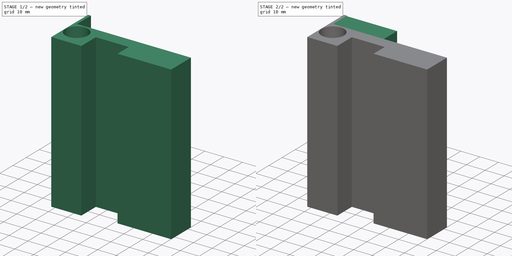
[diagram: build sequence overview — one tinted view per stage of 2, left to right]
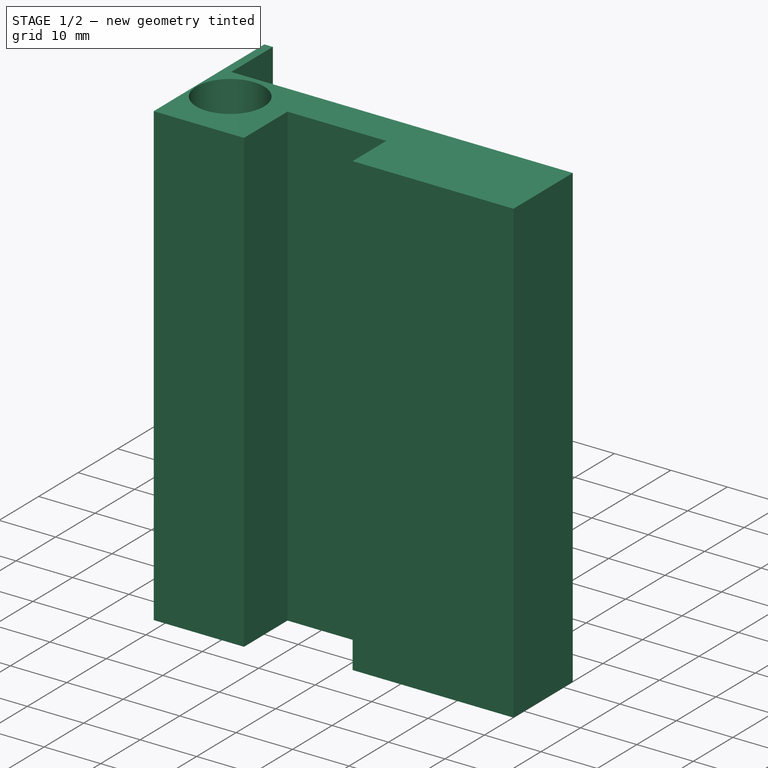
[diagram: stage 1 of 2 — iso view after this stage's code; geometry added in this stage tinted green]
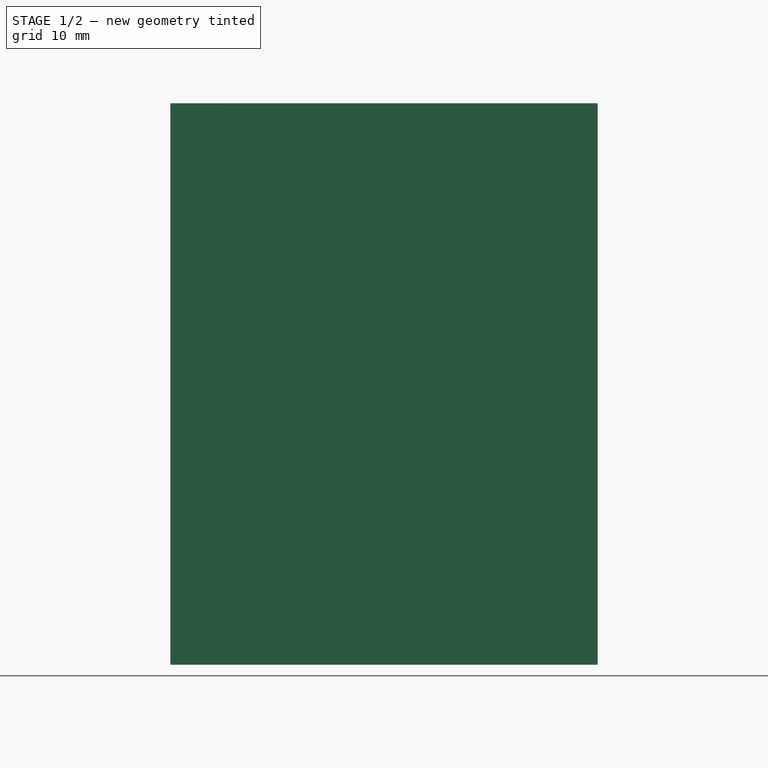
[diagram: stage 1 of 2 — front view after this stage's code; geometry added in this stage tinted green]
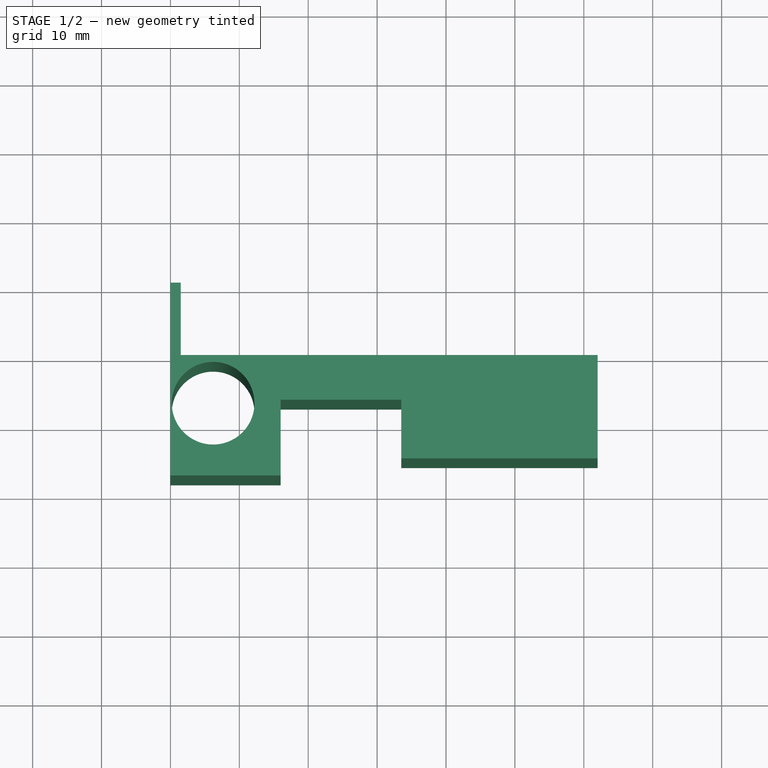
[diagram: stage 1 of 2 — top view after this stage's code; geometry added in this stage tinted green]
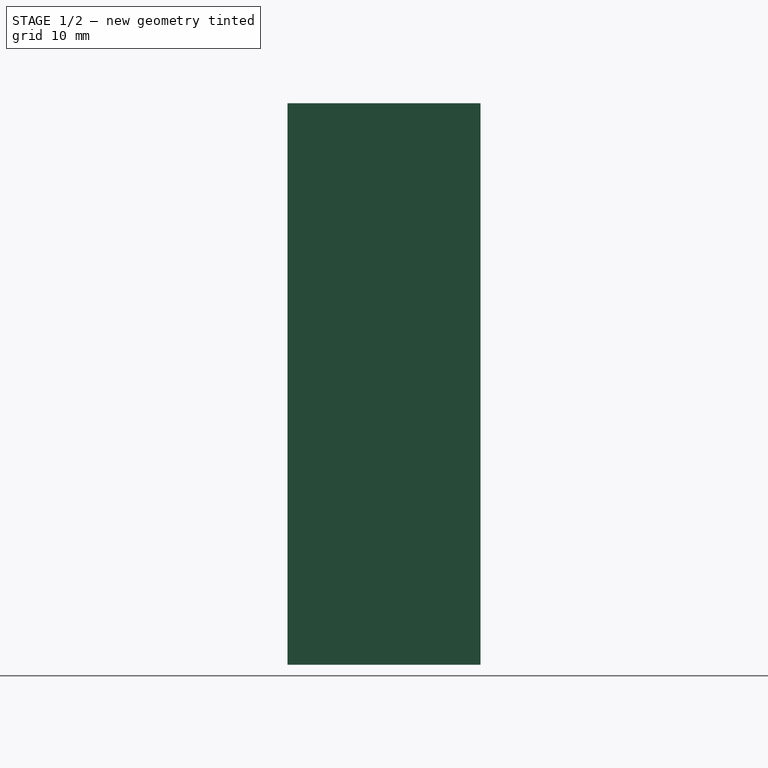
[diagram: stage 1 of 2 — right view after this stage's code; geometry added in this stage tinted green]
FCSTD DOCUMENT  (FreeCAD 0.18R16110 (Git))
Label: carrier1_11.5
License: All rights reserved
LicenseURL: http://en.wikipedia.org/wiki/All_rights_reserved
objects: Sketcher::SketchObject×4, PartDesign::Pad×3, PartDesign::Pocket×1, PartDesign::Body×1
note: 13 computed .brp shape members not serialized (recipe doc carries the construction recipe); baked Part::Feature solids carry a one-line shape summary decoded from their .brp

FEATURE [Sketcher::SketchObject] Sketch
  MapMode = 5
  Support = -> [XY_Plane]
  sketch-geometry (10):
    g0: LineSegment StartX=62 StartY=-10.5 StartZ=0 EndX=62 EndY=-25.5 EndZ=0
    g1: LineSegment StartX=62 StartY=-25.5 StartZ=0 EndX=33.5 EndY=-25.5 EndZ=0
    g2: LineSegment StartX=16 StartY=-17 StartZ=0 EndX=16 EndY=-28 EndZ=0
    g3: LineSegment StartX=16 StartY=-28 StartZ=0 EndX=0 EndY=-28 EndZ=0
    g4: LineSegment StartX=0 StartY=-28 StartZ=0 EndX=0 EndY=0 EndZ=0
    g5: LineSegment StartX=16 StartY=-17 StartZ=0 EndX=33.5 EndY=-17 EndZ=0
    g6: LineSegment StartX=33.5 StartY=-25.5 StartZ=0 EndX=33.5 EndY=-17 EndZ=0
    g7: LineSegment StartX=0 StartY=0 StartZ=0 EndX=1.5 EndY=0 EndZ=0
    g8: LineSegment StartX=1.5 StartY=0 StartZ=0 EndX=1.5 EndY=-10.5 EndZ=0
    g9: LineSegment StartX=1.5 StartY=-10.5 StartZ=0 EndX=62 EndY=-10.5 EndZ=0
  constraints (29):
    c: Coincident(g0,g1)
    c: Coincident(g2,g3)
    c: Coincident(g3,g4)
    c: Horizontal(g1)
    c: Horizontal(g3)
    c: DistanceX(g-1,g0) = 62
    c: Vertical(g4)
    c: Vertical(g0)
    c: Vertical(g2)
    c: DistanceY(g4,g4) = 28
    c: DistanceX(g3,g3) = 16
    c: DistanceY(g0,g0) = 15
    c: DistanceY(g2,g2) = 11
    c: Horizontal(g5)
    c: DistanceX(g5,g5) = 17.5
    c: Vertical(g6)
    c: Coincident(g1,g6)
    c: Coincident(g6,g5)
    c: Coincident(g5,g2)
    c: Coincident(g4,g7)
    c: Coincident(g4,g-1)
    c: Coincident(g7,g8)
    c: Coincident(g8,g9)
    c: Horizontal(g7)
    c: Vertical(g8)
    c: Horizontal(g9)
    c: Coincident(g9,g0)
    c: DistanceY(g8,g8) = 10.5
    c: DistanceX(g7,g7) = 1.5
FEATURE [PartDesign::Pad] Pad
  Length = 81.5
  Length2 = 100
  Profile = -> Sketch
  Type = 0
FEATURE [Sketcher::SketchObject] Sketch001
  ExternalGeometry = -> [Pad]
  MapMode = 5
  Placement = pos=(0,0,81.5) rot=(0,0,1;0rad)
  Support = -> [Pad]
  sketch-geometry (1):
    g0: Circle CenterX=6.2 CenterY=-17.5 CenterZ=0 NormalX=0 NormalY=0 NormalZ=1 AngleXU=0 Radius=6
  constraints (3):
    c: Radius(g0) = 6
    c: DistanceY(g-1,g0) = -17.5
    c: Distance(g0,g-3) = 9.8
FEATURE [PartDesign::Pocket] Pocket
  BaseFeature = -> Pad
  Length = 5
  Length2 = 100
  Profile = -> Sketch001
  Type = 1
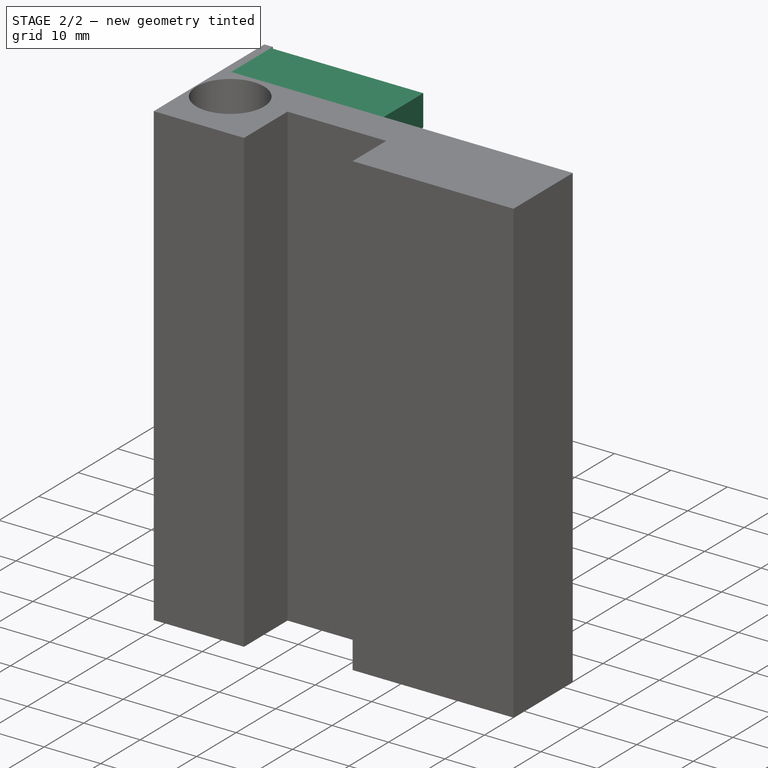
[diagram: stage 2 of 2 — iso view after this stage's code; geometry added in this stage tinted green]
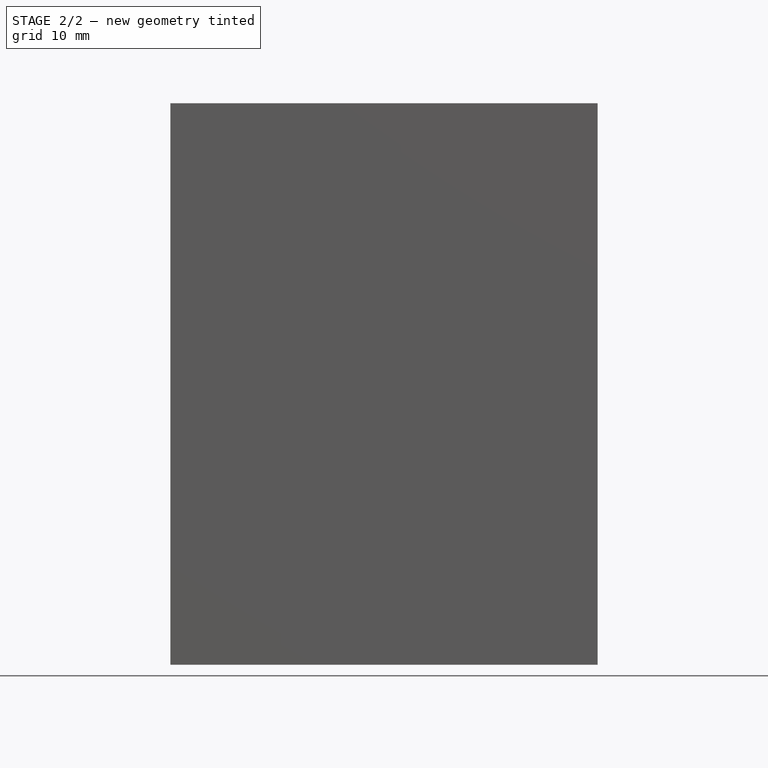
[diagram: stage 2 of 2 — front view after this stage's code; geometry added in this stage tinted green]
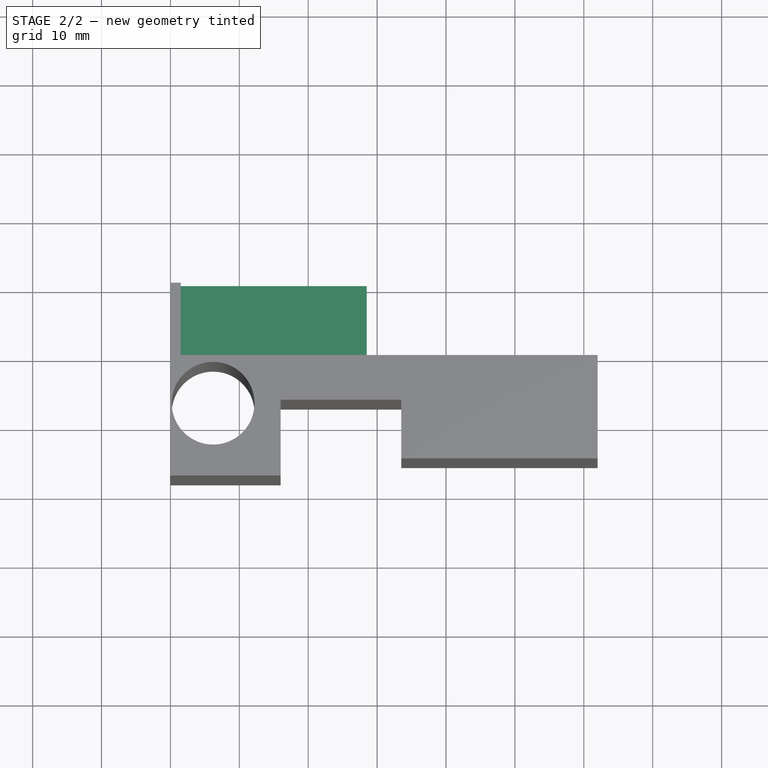
[diagram: stage 2 of 2 — top view after this stage's code; geometry added in this stage tinted green]
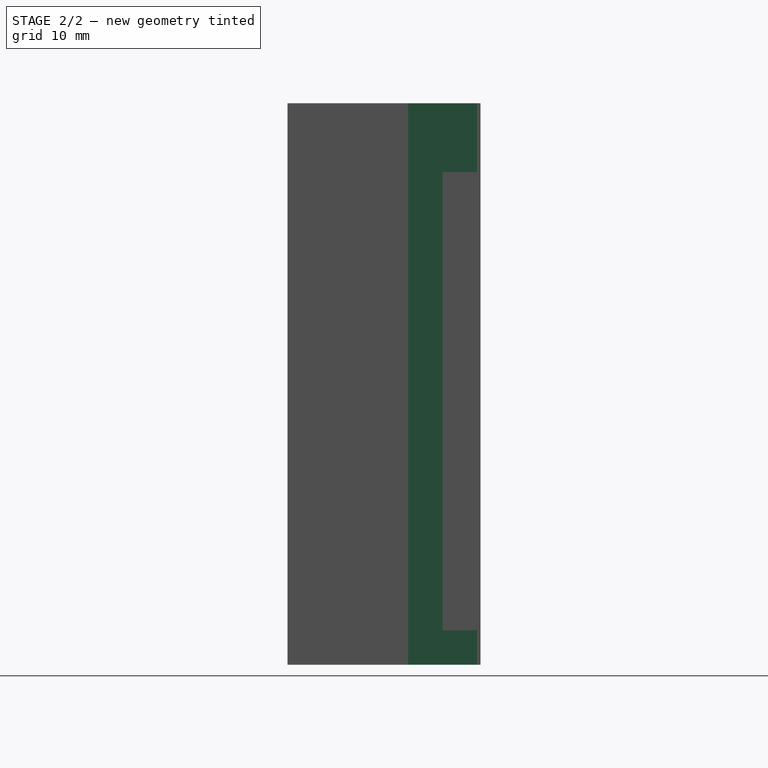
[diagram: stage 2 of 2 — right view after this stage's code; geometry added in this stage tinted green]
FEATURE [Sketcher::SketchObject] Sketch002
  ExternalGeometry = -> [Pocket]
  MapMode = 5
  Placement = pos=(0,-10.5,0) rot=(0,0.707107,0.707107;3.14159rad)
  Support = -> [Pocket]
  sketch-geometry (10):
    g0: LineSegment StartX=-7 StartY=2.7e-15 StartZ=0 EndX=-1.5 EndY=2.7e-15 EndZ=0
    g1: LineSegment StartX=-1.5 StartY=2.7e-15 StartZ=0 EndX=-1.5 EndY=5 EndZ=0
    g2: LineSegment StartX=-1.5 StartY=5 StartZ=0 EndX=-7 EndY=5 EndZ=0
    g3: LineSegment StartX=-7 StartY=5 StartZ=0 EndX=-7 EndY=2.7e-15 EndZ=0
    g4: LineSegment StartX=-28.5 StartY=81.5 StartZ=0 EndX=-1.5 EndY=81.5 EndZ=0
    g5: LineSegment StartX=-1.5 StartY=81.5 StartZ=0 EndX=-1.5 EndY=71.5 EndZ=0
    g6: LineSegment StartX=-1.5 StartY=71.5 StartZ=0 EndX=-6.5 EndY=71.5 EndZ=0
    g7: LineSegment StartX=-6.5 StartY=71.5 StartZ=0 EndX=-6.5 EndY=76 EndZ=0
    g8: LineSegment StartX=-6.5 StartY=76 StartZ=0 EndX=-28.5 EndY=76 EndZ=0
    g9: LineSegment StartX=-28.5 StartY=76 StartZ=0 EndX=-28.5 EndY=81.5 EndZ=0
  constraints (28):
    c: Coincident(g0,g1)
    c: Coincident(g1,g2)
    c: Coincident(g2,g3)
    c: Coincident(g3,g0)
    c: Horizontal(g0)
    c: Horizontal(g2)
    c: Vertical(g1)
    c: Vertical(g3)
    c: Distance(g0,g-3) = 7
    c: DistanceY(g1,g1) = 5
    c: Coincident(g0,g-4)
    c: Coincident(g4,g5)
    c: Coincident(g5,g6)
    c: Coincident(g6,g7)
    c: Coincident(g7,g8)
    c: Coincident(g8,g9)
    c: Coincident(g9,g4)
    c: Vertical(g9)
    c: Vertical(g7)
    c: Vertical(g5)
    c: Horizontal(g4)
    c: Horizontal(g8)
    c: Horizontal(g6)
    c: DistanceY(g5,g5) = 10
    c: DistanceY(g9,g9) = 5.5
    c: DistanceX(g4,g4) = 27
    c: DistanceX(g8,g8) = 22
    c: Coincident(g4,g-4)
FEATURE [PartDesign::Pad] Pad001
  BaseFeature = -> Pocket
  Length = 10
  Length2 = 100
  Profile = -> Sketch002
  Type = 0
FEATURE [Sketcher::SketchObject] Sketch003
  ExternalGeometry = -> [Pad001]
  MapMode = 5
  Placement = pos=(0,-10.5,0) rot=(0,0.707107,0.707107;3.14159rad)
  Support = -> [Pad001]
  sketch-geometry (4):
    g0: LineSegment StartX=-15 StartY=81.5 StartZ=0 EndX=-14 EndY=81.5 EndZ=0
    g1: LineSegment StartX=-14 StartY=81.5 StartZ=0 EndX=-14 EndY=0 EndZ=0
    g2: LineSegment StartX=-14 StartY=0 StartZ=0 EndX=-15 EndY=0 EndZ=0
    g3: LineSegment StartX=-15 StartY=0 StartZ=0 EndX=-15 EndY=81.5 EndZ=0
  constraints (12):
    c: Coincident(g0,g1)
    c: Coincident(g1,g2)
    c: Coincident(g2,g3)
    c: Coincident(g3,g0)
    c: Horizontal(g0)
    c: Horizontal(g2)
    c: Vertical(g1)
    c: Vertical(g3)
    c: DistanceX(g2,g2) = 1
    c: PointOnObject(g0,g-4)
    c: PointOnObject(g2,g-1)
    c: Distance(g2,g-3) = 47
FEATURE [PartDesign::Pad] Pad002
  BaseFeature = -> Pad001
  Length = 5
  Length2 = 100
  Profile = -> Sketch003
  Type = 0
FEATURE [PartDesign::Body] Body
  Group = -> [Sketch,Pad,Sketch001,Pocket,Pad001,Sketch002,Sketch003,Pad002]
  Origin = -> Origin
  Tip = -> Pad002
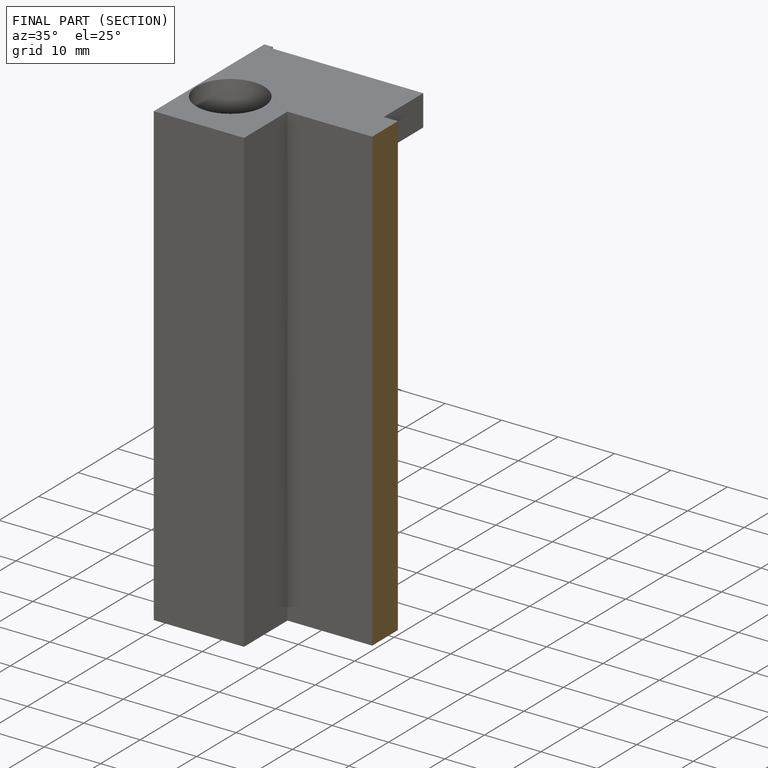
[diagram: finished part — half-section view (interior)]
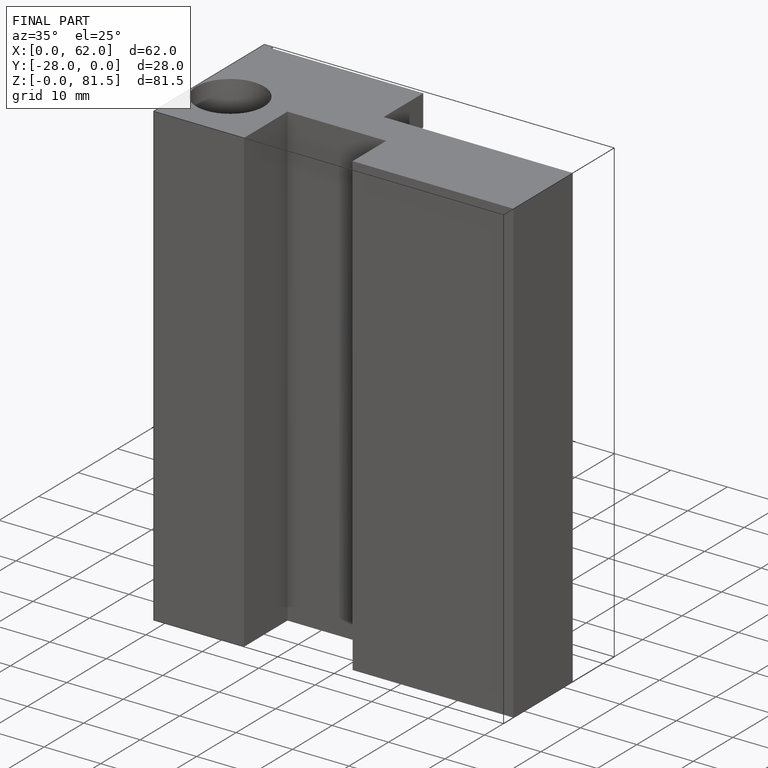
[diagram: finished part — iso view with bounding-box wireframe]
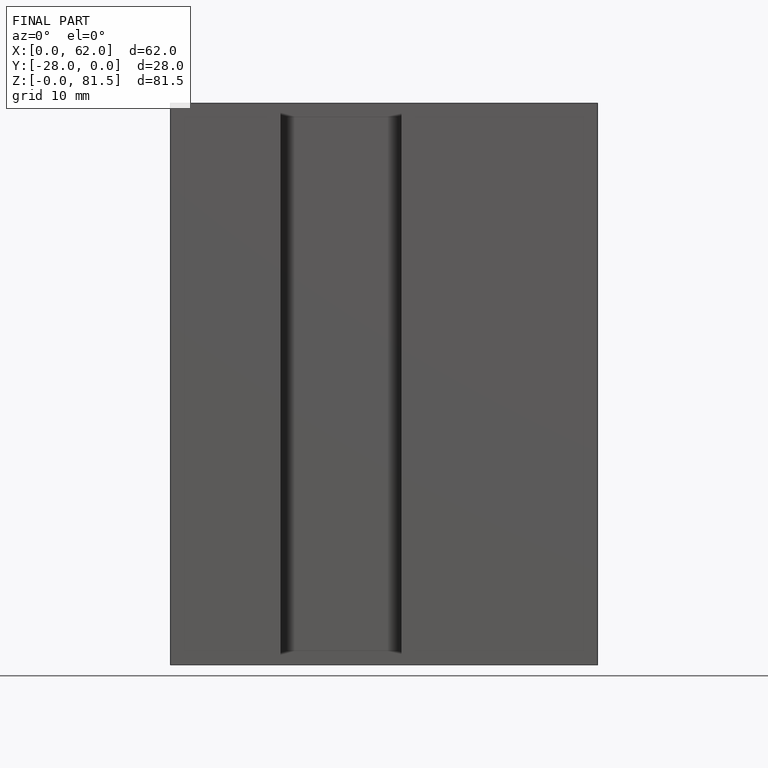
[diagram: finished part — front view with bounding-box wireframe]
